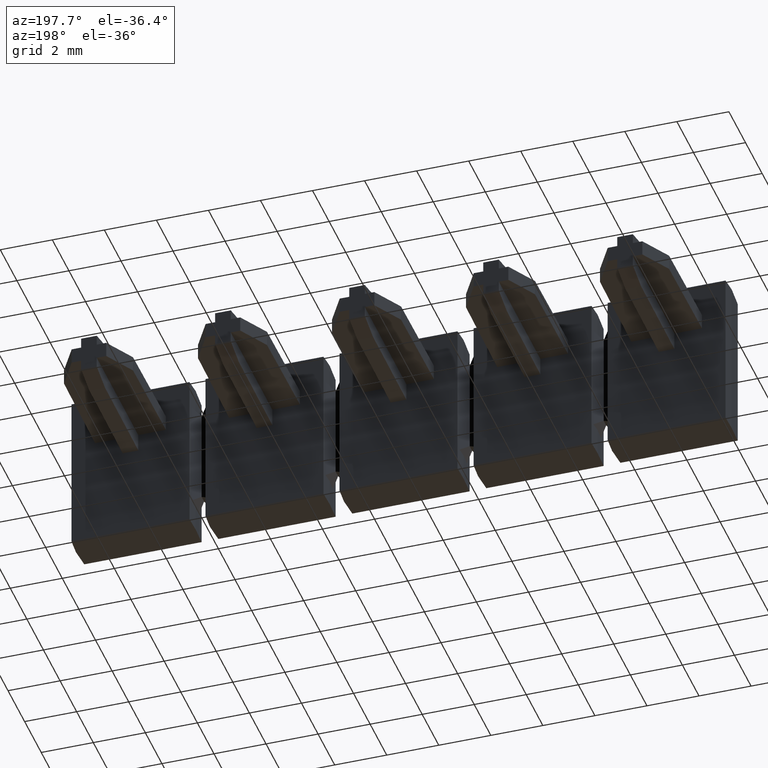
[diagram: clean part render]
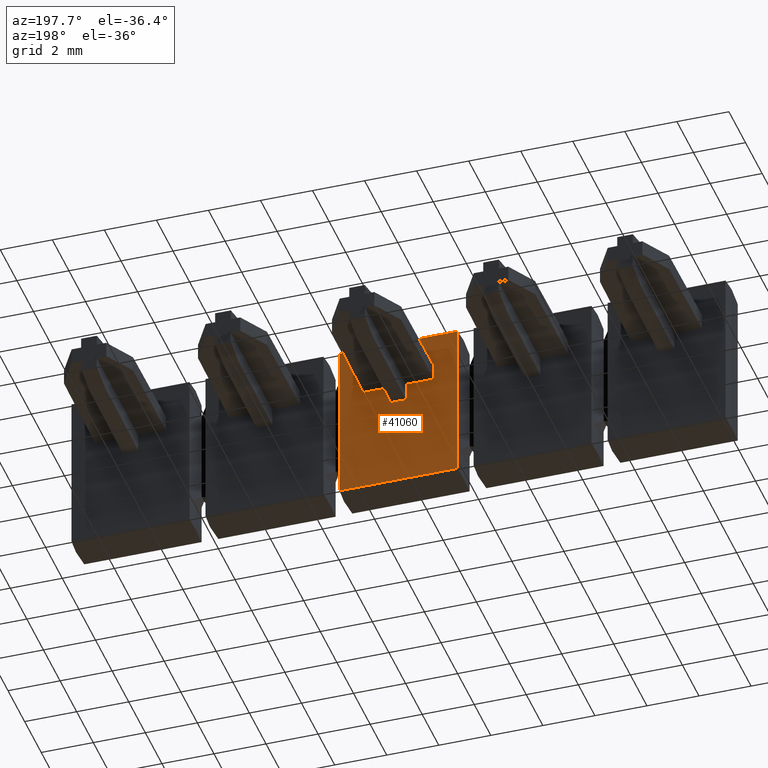
[diagram: same view with one face highlighted and labeled with its STEP entity id]
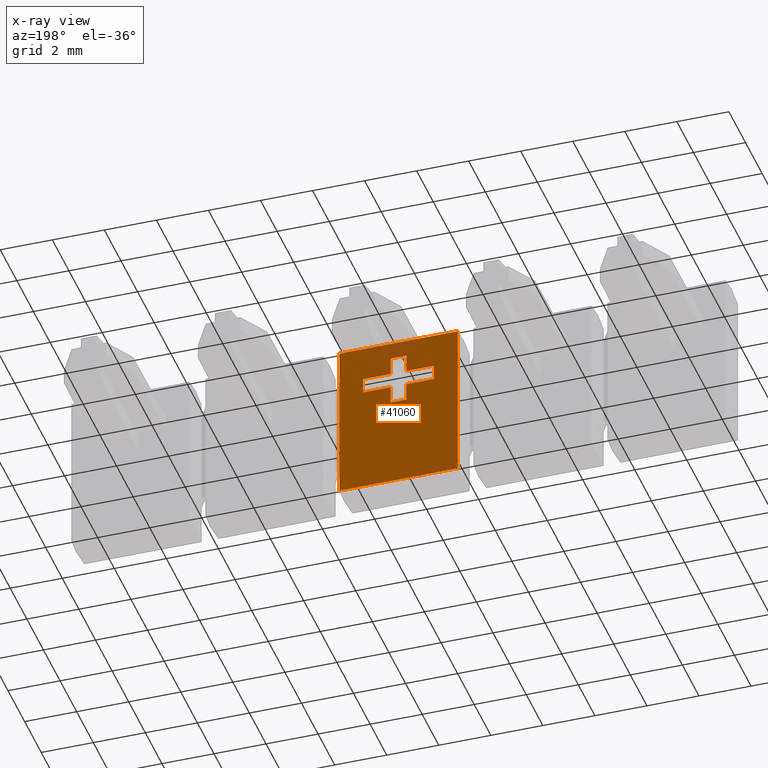
[diagram: x-ray of the same camera — body ghosted, the highlighted face saturated]
A machine part, auxiliary view. The second image highlights one B-rep face of the part: STEP entity #41060.
The next image is the same camera in x-ray: the body ghosted, the highlighted face saturated — about 6% of this face is hidden behind the body in this view.
In plain terms, the highlighted planar face has unit normal (-0, 1, -0).
Its self-contained STEP definition (entity closure, byte-faithful):
#11520=CARTESIAN_POINT('',(16.4511107185505,2.26950785552766,
43.0616252093693));
#11530=VERTEX_POINT('',#11520);
#11960=CARTESIAN_POINT('',(22.6843610757798,2.26950785552762,
43.0616252093561));
#11970=VERTEX_POINT('',#11960);
#12000=CARTESIAN_POINT('',(25.1869785548769,2.2695078555276,
43.0616252093508));
#12010=DIRECTION('',(-1.,6.29799243060081E-15,2.11341968318976E-12));
#12020=VECTOR('',#12010,1.);
#12030=LINE('',#12000,#12020);
#12040=EDGE_CURVE('',#11970,#11530,#12030,.T.);
#18020=CARTESIAN_POINT('',(17.1177358666669,2.2695078555266,
40.4949999999889));
#18030=VERTEX_POINT('',#18020);
#18060=CARTESIAN_POINT('',(17.1177358666317,2.26950785553198,
53.6700000000635));
#18070=DIRECTION('',(-2.67076983666268E-12,4.08396006638927E-13,1.));
#18080=VECTOR('',#18070,1.);
#18090=LINE('',#18060,#18080);
#18100=CARTESIAN_POINT('',(17.1177358666653,2.26950785552685,
41.0949999999889));
#18110=VERTEX_POINT('',#18100);
#18120=EDGE_CURVE('',#18030,#18110,#18090,.T.);
#18550=CARTESIAN_POINT('',(17.8177358665862,2.26950785553199,
53.6700000000654));
#18560=DIRECTION('',(-2.66975915508205E-12,4.08396006638927E-13,1.));
#18570=VECTOR('',#18560,1.);
#18580=LINE('',#18550,#18570);
#18590=CARTESIAN_POINT('',(17.8177358666242,2.26950785552618,
39.434999999962));
#18600=VERTEX_POINT('',#18590);
#18610=CARTESIAN_POINT('',(17.8177358666214,2.26950785552661,
40.4949999999907));
#18620=VERTEX_POINT('',#18610);
#18630=EDGE_CURVE('',#18600,#18620,#18580,.T.);
#20930=CARTESIAN_POINT('',(18.4177358666198,2.26950785552685,
41.0949999999923));
#20940=VERTEX_POINT('',#20930);
#20970=CARTESIAN_POINT('',(25.1869785548822,2.2695078555268,
41.0950000000104));
#20980=DIRECTION('',(1.,-6.29799242864736E-15,2.6697591550794E-12));
#20990=VECTOR('',#20980,1.);
#21000=LINE('',#20970,#20990);
#21010=CARTESIAN_POINT('',(19.1177358665677,2.26950785552684,
41.0949999999942));
#21020=VERTEX_POINT('',#21010);
#21030=EDGE_CURVE('',#20940,#21020,#21000,.T.);
#21750=CARTESIAN_POINT('',(17.8177358666137,2.26950785552728,
42.1550000000199));
#21760=VERTEX_POINT('',#21750);
#21790=CARTESIAN_POINT('',(25.1869785548793,2.26950785552723,
42.1550000000392));
#21800=DIRECTION('',(1.,-6.29799242866992E-15,2.61451256510272E-12));
#21810=VECTOR('',#21800,1.);
#21820=LINE('',#21790,#21810);
#21830=CARTESIAN_POINT('',(18.417735866617,2.26950785552728,
42.1550000000215));
#21840=VERTEX_POINT('',#21830);
#21850=EDGE_CURVE('',#21760,#21840,#21820,.T.);
#25910=CARTESIAN_POINT('',(22.6843610757703,2.26950785552576,
38.5283747906547));
#25920=VERTEX_POINT('',#25910);
#26090=CARTESIAN_POINT('',(16.4511107185409,2.2695078555258,
38.5283747906678));
#26100=VERTEX_POINT('',#26090);
#26130=CARTESIAN_POINT('',(25.186978554889,2.26950785552575,
38.5283747906494));
#26140=DIRECTION('',(1.,-6.29799243060085E-15,-2.11350431493264E-12));
#26150=VECTOR('',#26140,1.);
#26160=LINE('',#26130,#26150);
#26170=EDGE_CURVE('',#26100,#25920,#26160,.T.);
#29230=CARTESIAN_POINT('',(18.4177358666242,2.26950785552617,
39.4349999999636));
#29240=VERTEX_POINT('',#29230);
#29400=CARTESIAN_POINT('',(18.4177358666214,2.26950785552659,
40.4949999999923));
#29410=VERTEX_POINT('',#29400);
#29440=CARTESIAN_POINT('',(18.4177358665862,2.26950785553198,
53.6700000000669));
#29450=DIRECTION('',(2.66975915508205E-12,-4.08396006638927E-13,-1.));
#29460=VECTOR('',#29450,1.);
#29470=LINE('',#29440,#29460);
#29480=EDGE_CURVE('',#29410,#29240,#29470,.T.);
#34820=CARTESIAN_POINT('',(25.1869785548822,2.2695078555268,
41.0950000000104));
#34830=DIRECTION('',(1.,-6.29799242864736E-15,2.6697591550794E-12));
#34840=VECTOR('',#34830,1.);
#34850=LINE('',#34820,#34840);
#34860=CARTESIAN_POINT('',(17.8177358666165,2.26950785552684,
41.0949999999907));
#34870=VERTEX_POINT('',#34860);
#34880=EDGE_CURVE('',#18110,#34870,#34850,.T.);
#40390=CARTESIAN_POINT('',(18.6177358869373,2.26950785552987,
48.5200000205404));
#40400=DIRECTION('',(-6.29799242973768E-15,-1.,4.0839600663891E-13));
#40410=DIRECTION('',(-1.,6.29799243060089E-15,2.11364818889553E-12));
#40420=AXIS2_PLACEMENT_3D('',#40390,#40400,#40410);
#40430=PLANE('',#40420);
#40440=ORIENTED_EDGE('',*,*,#34880,.T.);
#40450=ORIENTED_EDGE('',*,*,#18120,.T.);
#40460=CARTESIAN_POINT('',(25.1869785548838,2.26950785552655,
40.4950000000104));
#40470=DIRECTION('',(-1.,6.29799242864736E-15,-2.6697591550794E-12));
#40480=VECTOR('',#40470,1.);
#40490=LINE('',#40460,#40480);
#40500=EDGE_CURVE('',#18620,#18030,#40490,.T.);
#40510=ORIENTED_EDGE('',*,*,#40500,.T.);
#40520=ORIENTED_EDGE('',*,*,#18630,.T.);
#40530=CARTESIAN_POINT('',(25.1869785548866,2.26950785552612,
39.434999999982));
#40540=DIRECTION('',(-1.,6.2979924286248E-15,-2.72500574505608E-12));
#40550=VECTOR('',#40540,1.);
#40560=LINE('',#40530,#40550);
#40570=EDGE_CURVE('',#29240,#18600,#40560,.T.);
#40580=ORIENTED_EDGE('',*,*,#40570,.T.);
#40590=ORIENTED_EDGE('',*,*,#29480,.T.);
#40600=CARTESIAN_POINT('',(25.1869785548838,2.26950785552655,
40.4950000000104));
#40610=DIRECTION('',(-1.,6.29799242864736E-15,-2.6697591550794E-12));
#40620=VECTOR('',#40610,1.);
#40630=LINE('',#40600,#40620);
#40640=CARTESIAN_POINT('',(19.1177358665693,2.26950785552659,
40.4949999999942));
#40650=VERTEX_POINT('',#40640);
#40660=EDGE_CURVE('',#40650,#29410,#40630,.T.);
#40670=ORIENTED_EDGE('',*,*,#40660,.T.);
#40680=CARTESIAN_POINT('',(19.1177358665341,2.26950785553197,
53.6700000000688));
#40690=DIRECTION('',(2.66874847349613E-12,-4.08396006638927E-13,-1.));
#40700=VECTOR('',#40690,1.);
#40710=LINE('',#40680,#40700);
#40720=EDGE_CURVE('',#21020,#40650,#40710,.T.);
#40730=ORIENTED_EDGE('',*,*,#40720,.T.);
#40740=ORIENTED_EDGE('',*,*,#21030,.T.);
#40750=CARTESIAN_POINT('',(18.4177358665862,2.26950785553198,
53.6700000000669));
#40760=DIRECTION('',(2.66975915508205E-12,-4.08396006638927E-13,-1.));
#40770=VECTOR('',#40760,1.);
#40780=LINE('',#40750,#40770);
#40790=EDGE_CURVE('',#21840,#20940,#40780,.T.);
#40800=ORIENTED_EDGE('',*,*,#40790,.T.);
#40810=ORIENTED_EDGE('',*,*,#21850,.T.);
#40820=CARTESIAN_POINT('',(17.817735866583,2.26950785553199,
53.6700000000654));
#40830=DIRECTION('',(-2.66975915508205E-12,4.08396006638927E-13,1.));
#40840=VECTOR('',#40830,1.);
#40850=LINE('',#40820,#40840);
#40860=EDGE_CURVE('',#34870,#21760,#40850,.T.);
#40870=ORIENTED_EDGE('',*,*,#40860,.T.);
#40880=EDGE_LOOP('',(#40870,#40810,#40800,#40740,#40730,#40670,#40590,
#40580,#40520,#40510,#40450,#40440));
#40890=FACE_BOUND('',#40880,.T.);
#40900=ORIENTED_EDGE('',*,*,#12040,.T.);
#40910=CARTESIAN_POINT('',(22.6843610758023,2.26950785553195,
53.6700000000783));
#40920=DIRECTION('',(2.1134619990612E-12,4.08396006638896E-13,1.));
#40930=VECTOR('',#40920,1.);
#40940=LINE('',#40910,#40930);
#40950=EDGE_CURVE('',#25920,#11970,#40940,.T.);
#40960=ORIENTED_EDGE('',*,*,#40950,.T.);
#40970=ORIENTED_EDGE('',*,*,#26170,.T.);
#40980=CARTESIAN_POINT('',(16.4511107185729,2.26950785553199,
53.6700000000617));
#40990=DIRECTION('',(-2.1134619990612E-12,-4.08396006638896E-13,-1.));
#41000=VECTOR('',#40990,1.);
#41010=LINE('',#40980,#41000);
#41020=EDGE_CURVE('',#11530,#26100,#41010,.T.);
#41030=ORIENTED_EDGE('',*,*,#41020,.T.);
#41040=EDGE_LOOP('',(#41030,#40970,#40960,#40900));
#41050=FACE_OUTER_BOUND('',#41040,.T.);
#41060=ADVANCED_FACE('',(#40890,#41050),#40430,.T.);